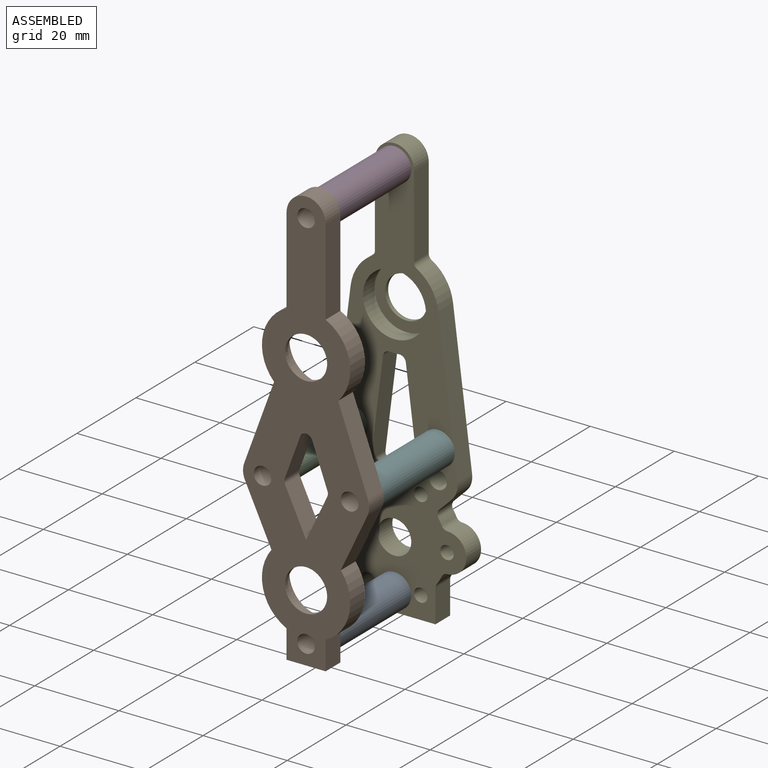
[diagram: assembled view]
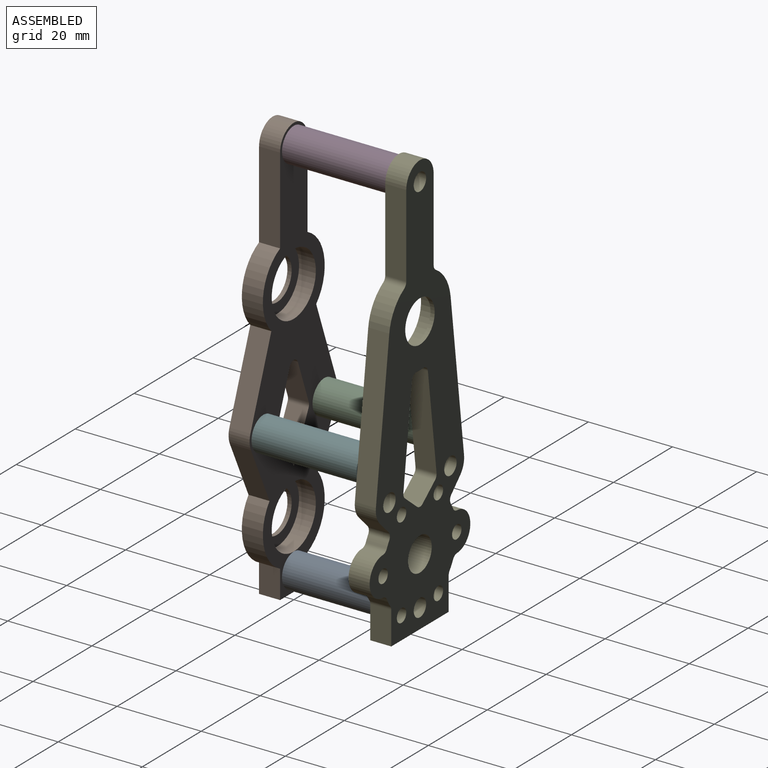
[diagram: assembled view, second angle]
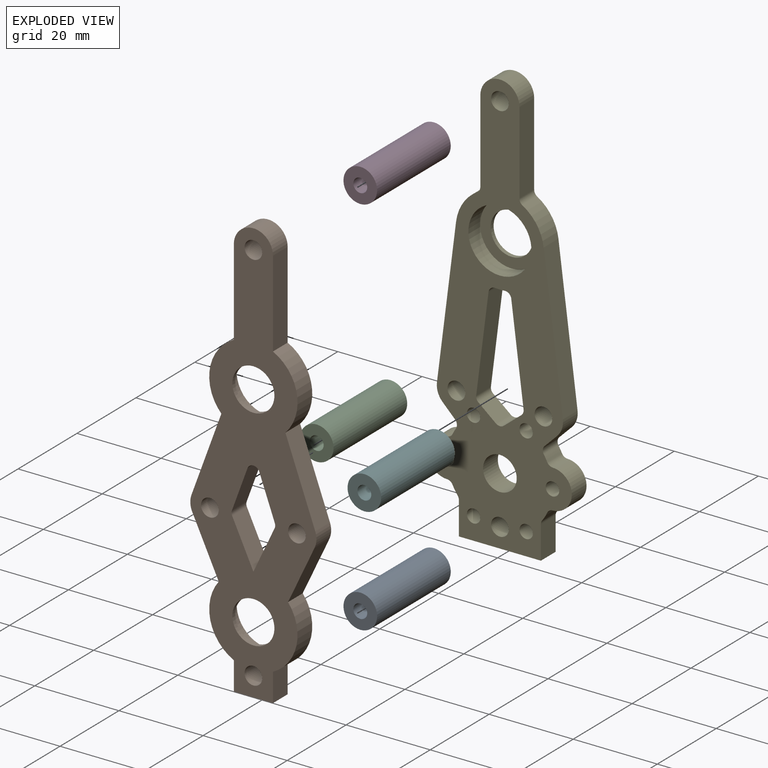
[diagram: exploded view]
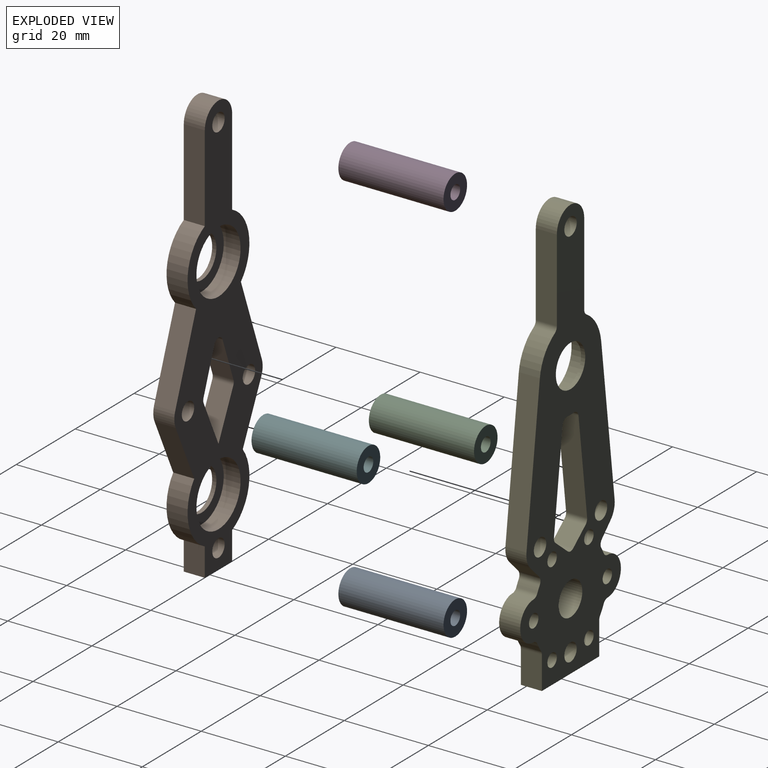
[diagram: exploded view, second angle]
ASSEMBLY  parts=6 mates=5
PART A: 4 faces, bbox 8x25x8 mm
  f0: cylinder r=1.65mm len=25mm, axis (0,-1,0), area 259.2mm2, adj f2,f3
  f1: cylinder r=4mm len=25mm, axis (0,-1,0), area 628.3mm2, adj f2,f3
  f2: plane 8x8mm, normal (0,1,0), area 41.7mm2, adj f0,f1
  f3: plane 8x8mm, normal (0,-1,0), area 41.7mm2, adj f0,f1
PART B: 35 faces, bbox 30x5x100.8 mm
  f0: plane 6.74x5mm, normal (-1,0,0), area 33.7mm2, adj f1,f22,f29,f30
  f1: plane 9.3x5mm, normal (0,0,-1), area 46.5mm2, adj f0,f2,f29,f30
  f2: plane 6.74x5mm, normal (1,0,0), area 33.7mm2, adj f1,f3,f29,f30
  f3: cylinder r=10.5mm len=15.93mm, axis (0,1,0), area 93.5mm2, adj f2,f4,f29,f30
  f4: plane 13.33x6.32mm, normal (0.9,0,-0.43), area 73.8mm2, adj f3,f5,f29,f30
  f5: cylinder r=4.65mm len=5mm, axis (0,1,0), area 18.5mm2, adj f4,f6,f29,f30
  f6: plane 19.32x7.1mm, normal (0.94,0,0.34), area 102.9mm2, adj f5,f7,f29,f30
  f7: cylinder r=10.5mm len=16.65mm, axis (0,1,0), area 98.3mm2, adj f6,f8,f29,f30
  f8: plane 20.59x5mm, normal (1,0,0), area 102.9mm2, adj f7,f9,f29,f30
  f9: cylinder r=4.65mm len=9.3mm, axis (0,1,0), area 73mm2, adj f8,f10,f29,f30
  f10: plane 20.59x5mm, normal (-1,0,0), area 102.9mm2, adj f9,f11,f29,f30
  f11: cylinder r=10.5mm len=16.65mm, axis (0,1,0), area 98.3mm2, adj f10,f12,f29,f30
  f12: plane 19.32x7.1mm, normal (-0.94,0,0.34), area 102.9mm2, adj f11,f13,f29,f30
  f13: cylinder r=4.65mm len=5mm, axis (0,1,0), area 18.5mm2, adj f12,f14,f29,f30
  f14: plane 13.33x6.32mm, normal (-0.9,0,-0.43), area 73.8mm2, adj f13,f22,f29,f30
  f15: plane 10.64x5.04mm, normal (0.9,0,0.43), area 58.9mm2, adj f16,f27,f29,f30
  f16: cylinder r=1.5mm len=5mm, axis (0,1,0), area 6mm2, adj f15,f17,f29,f30
  f17: plane 10.03x5mm, normal (0.94,0,-0.34), area 53.4mm2, adj f16,f18,f29,f30
  f18: cylinder r=1.5mm len=5mm, axis (0,1,0), area 18.3mm2, adj f17,f19,f29,f30
  f19: plane 10.03x5mm, normal (-0.94,0,-0.34), area 53.4mm2, adj f18,f20,f29,f30
  f20: cylinder r=1.5mm len=5mm, axis (0,1,0), area 6mm2, adj f19,f27,f29,f30
  f21: cylinder r=5mm len=10mm, axis (0,1,0), area 31.4mm2, adj f29,f32
  f22: cylinder r=10.5mm len=15.93mm, axis (0,1,0), area 93.5mm2, adj f0,f14,f29,f30
  f23: cylinder r=2.1mm len=5mm, axis (0,1,0), area 66mm2, adj f29,f30
  f24: cylinder r=2.1mm len=5mm, axis (0,1,0), area 66mm2, adj f29,f30
  f25: cylinder r=2.1mm len=5mm, axis (0,1,0), area 66mm2, adj f29,f30
  f26: cylinder r=2.1mm len=5mm, axis (0,1,0), area 66mm2, adj f29,f30
  f27: plane 10.64x5.04mm, normal (-0.9,0,0.43), area 58.9mm2, adj f15,f20,f29,f30
  f28: cylinder r=5mm len=10mm, axis (0,1,0), area 31.4mm2, adj f29,f34
  f29: plane 100.8x30mm, normal (0,-1,0), area 1384mm2, adj f0,f1,f2,f3,f4,f5,f6,f7
  f30: plane 100.8x30mm, normal (0,1,0), area 1187.6mm2, adj f0,f1,f2,f3,f4,f5,f6,f7
  f31: cylinder r=7.5mm len=15mm, axis (0,1,0), area 188.5mm2, adj f30,f32
  f32: plane 15x15mm, normal (0,1,0), area 98.2mm2, adj f21,f31
  f33: cylinder r=7.5mm len=15mm, axis (0,1,0), area 188.5mm2, adj f30,f34
  f34: plane 15x15mm, normal (0,1,0), area 98.2mm2, adj f28,f33
PART C: same geometry as A
PART D: same geometry as A
PART E: 56 faces, bbox 34.2x5x100.8 mm
  f0: cylinder r=5mm len=10mm, axis (0,-1,0), area 31.4mm2, adj f37,f40
  f1: plane 23.01x5mm, normal (-0.99,0,-0.13), area 116mm2, adj f37,f38,f51,f55
  f2: plane 5x4.14mm, normal (-0.63,0,0.77), area 26.8mm2, adj f37,f38,f51,f52
  f3: plane 5x4.14mm, normal (0.63,0,0.77), area 26.8mm2, adj f37,f38,f52,f53
  f4: plane 23.01x5mm, normal (0.99,0,-0.13), area 116mm2, adj f37,f38,f53,f54
  f5: plane 19.7x5mm, normal (1,0,0), area 98.5mm2, adj f6,f37,f38,f50
  f6: cylinder r=4.65mm len=9.3mm, axis (0,-1,0), area 73mm2, adj f5,f7,f37,f38
  f7: plane 19.7x5mm, normal (-1,0,0), area 98.5mm2, adj f6,f37,f38,f41
  f8: cylinder r=10.5mm len=7.69mm, axis (0,-1,0), area 47.6mm2, adj f9,f37,f38,f41
  f9: plane 35.74x5mm, normal (-0.99,0,0.13), area 180.1mm2, adj f8,f10,f37,f38
  f10: cylinder r=4.65mm len=5mm, axis (0,-1,0), area 21.2mm2, adj f9,f11,f37,f38
  f11: plane 5x2.98mm, normal (-0.71,0,-0.71), area 21mm2, adj f10,f37,f38,f42
  f12: cylinder r=12.5mm len=5mm, axis (0,-1,0), area 8.1mm2, adj f37,f38,f42,f43
  f13: cylinder r=4.6mm len=9.2mm, axis (0,-1,0), area 71.5mm2, adj f37,f38,f43,f44
  f14: cylinder r=12.5mm len=5mm, axis (0,-1,0), area 11.7mm2, adj f37,f38,f44,f45
  f15: plane 7.81x5mm, normal (-1,0,0), area 39mm2, adj f16,f37,f38,f45
  f16: plane 19.49x5mm, normal (0,0,-1), area 97.4mm2, adj f15,f17,f37,f38
  f17: plane 7.81x5mm, normal (1,0,0), area 39mm2, adj f16,f37,f38,f46
  f18: cylinder r=12.5mm len=5mm, axis (0,-1,0), area 11.7mm2, adj f37,f38,f46,f47
  f19: cylinder r=4.6mm len=9.2mm, axis (0,-1,0), area 71.5mm2, adj f37,f38,f47,f48
  f20: cylinder r=12.5mm len=5mm, axis (0,-1,0), area 8.1mm2, adj f37,f38,f48,f49
  f21: plane 5x2.98mm, normal (0.71,0,-0.71), area 21mm2, adj f22,f37,f38,f49
  f22: cylinder r=4.65mm len=5mm, axis (0,-1,0), area 21.2mm2, adj f21,f23,f37,f38
  f23: plane 35.74x5mm, normal (0.99,0,0.13), area 180.1mm2, adj f22,f35,f37,f38
  f24: cylinder r=2.1mm len=5mm, axis (0,-1,0), area 66mm2, adj f37,f38
  f25: cylinder r=2.1mm len=5mm, axis (0,-1,0), area 66mm2, adj f37,f38
  f26: cylinder r=2.1mm len=5mm, axis (0,-1,0), area 66mm2, adj f37,f38
  f27: cylinder r=2.1mm len=5mm, axis (0,-1,0), area 66mm2, adj f37,f38
  f28: cylinder r=1.6mm len=5mm, axis (0,-1,0), area 50.3mm2, adj f37,f38
  f29: cylinder r=1.6mm len=5mm, axis (0,-1,0), area 50.3mm2, adj f37,f38
  f30: cylinder r=1.6mm len=5mm, axis (0,-1,0), area 50.3mm2, adj f37,f38
  f31: cylinder r=1.6mm len=5mm, axis (0,-1,0), area 50.3mm2, adj f37,f38
  f32: cylinder r=1.6mm len=5mm, axis (0,-1,0), area 50.3mm2, adj f37,f38
  f33: cylinder r=1.6mm len=5mm, axis (0,-1,0), area 50.3mm2, adj f37,f38
  f34: cylinder r=4mm len=8mm, axis (0,-1,0), area 125.7mm2, adj f37,f38
  f35: cylinder r=10.5mm len=7.69mm, axis (0,-1,0), area 47.6mm2, adj f23,f37,f38,f50
  f36: cylinder r=10.5mm len=5mm, axis (0,-1,0), area 10.7mm2, adj f37,f38,f54,f55
  f37: plane 100.8x34.2mm, normal (0,1,0), area 1608.6mm2, adj f0,f1,f2,f3,f4,f5,f6,f7
  f38: plane 100.8x34.2mm, normal (0,-1,0), area 1510.4mm2, adj f1,f2,f3,f4,f5,f6,f7,f8
  f39: cylinder r=7.5mm len=15mm, axis (0,-1,0), area 188.5mm2, adj f38,f40
  f40: plane 15x15mm, normal (0,-1,0), area 98.2mm2, adj f0,f39
  f41: cylinder r=1.5mm len=5mm, axis (0,-1,0), area 7.7mm2, adj f7,f8,f37,f38
  f42: cylinder r=1.5mm len=5mm, axis (0,-1,0), area 10.3mm2, adj f11,f12,f37,f38
  f43: cylinder r=1.5mm len=5mm, axis (0,1,0), area 8.3mm2, adj f12,f13,f37,f38
  f44: cylinder r=1.5mm len=5mm, axis (0,1,0), area 8.3mm2, adj f13,f14,f37,f38
  f45: cylinder r=1.5mm len=5mm, axis (0,-1,0), area 4.8mm2, adj f14,f15,f37,f38
  f46: cylinder r=1.5mm len=5mm, axis (0,-1,0), area 4.8mm2, adj f17,f18,f37,f38
  f47: cylinder r=1.5mm len=5mm, axis (0,1,0), area 8.3mm2, adj f18,f19,f37,f38
  f48: cylinder r=1.5mm len=5mm, axis (0,1,0), area 8.3mm2, adj f19,f20,f37,f38
  f49: cylinder r=1.5mm len=5mm, axis (0,-1,0), area 10.3mm2, adj f20,f21,f37,f38
  f50: cylinder r=1.5mm len=5mm, axis (0,-1,0), area 7.7mm2, adj f5,f35,f37,f38
  f51: cylinder r=1.5mm len=5mm, axis (0,-1,0), area 7.6mm2, adj f1,f2,f37,f38
  f52: cylinder r=1.5mm len=5mm, axis (0,1,0), area 10.3mm2, adj f2,f3,f37,f38
  f53: cylinder r=1.5mm len=5mm, axis (0,1,0), area 7.6mm2, adj f3,f4,f37,f38
  f54: cylinder r=1.5mm len=5mm, axis (0,-1,0), area 11.6mm2, adj f4,f36,f37,f38
  f55: cylinder r=1.5mm len=5mm, axis (0,-1,0), area 11.6mm2, adj f1,f36,f37,f38
PART F: same geometry as A
PLACE A t=(0,0,-11.5)mm
PLACE B at identity fixed
PLACE C t=(-10.35,0,21.84)mm
PLACE D t=(0,0,80)mm
PLACE E at identity
PLACE F t=(10.35,0,21.84)mm
MATE fastened F.f0 <-> B.f5  axis (0,-1,0) through (10.35,0,21.84)mm
MATE fastened C.f0 <-> B.f13  axis (0,-1,0) through (-10.35,0,21.84)mm
MATE fastened D.f0 <-> B.f9  axis (0,-1,0) through (0,0,80)mm
MATE fastened B.f25 <-> A.f1  axis (0,1,0) through (0,0,-11.5)mm
MATE fastened E.f26 <-> D.f0  axis (0,-1,0) through (0,25,80)mm
